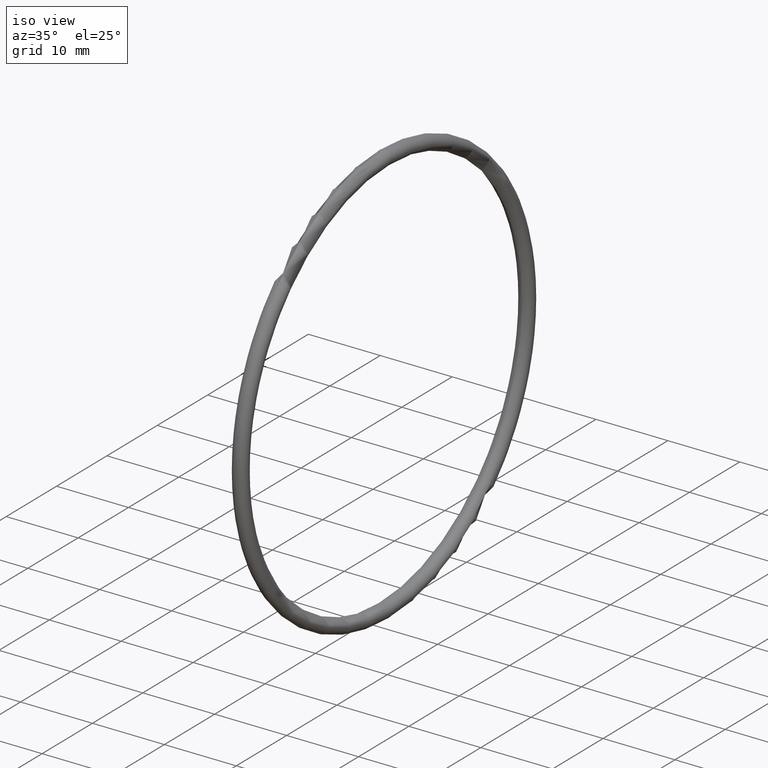
[diagram: clean part render]
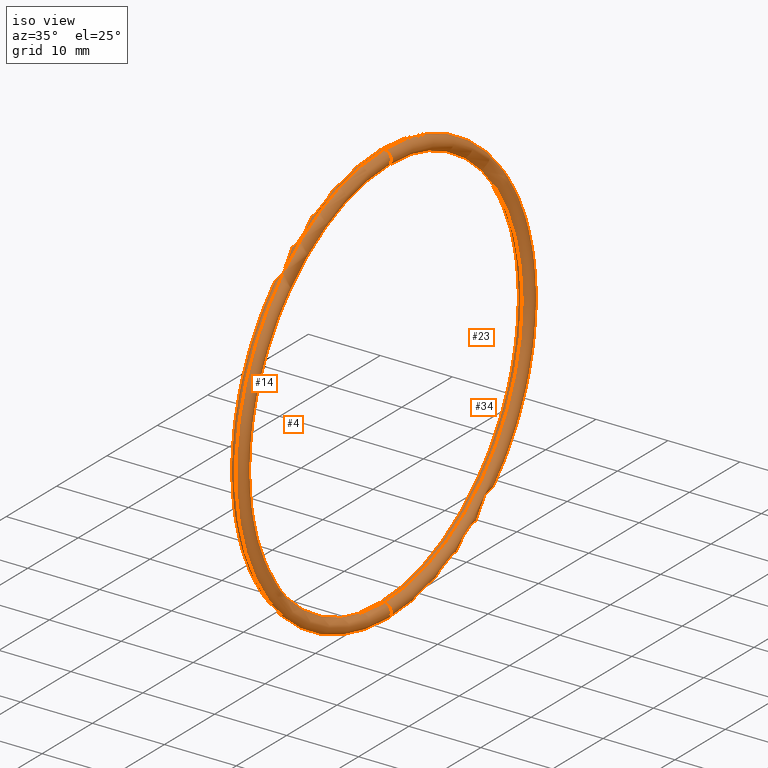
[diagram: same view with one multi-face feature highlighted, each face labeled with its STEP entity id]
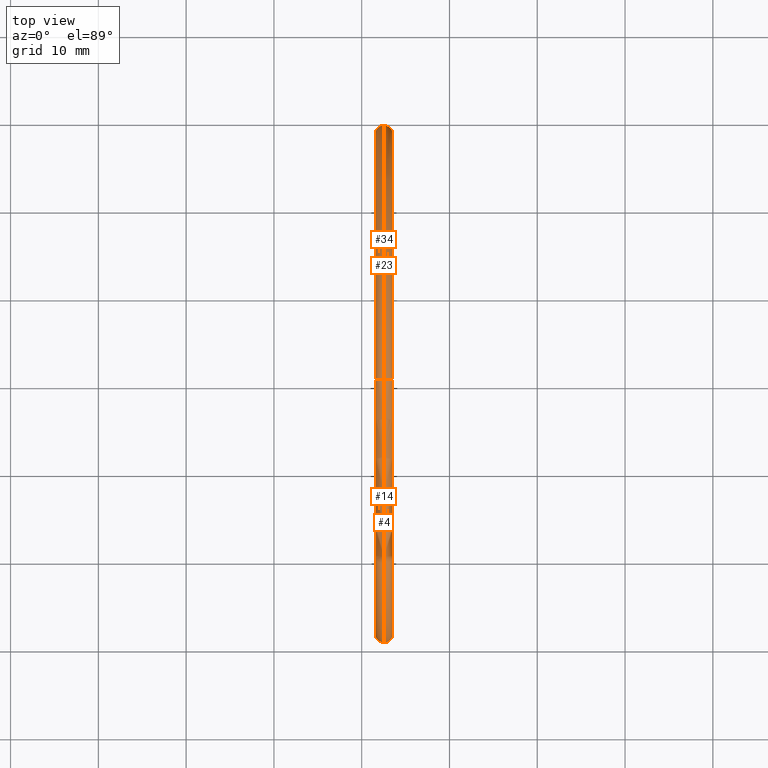
[diagram: same view with one multi-face feature highlighted, each face labeled with its STEP entity id]
A machine part, iso view. The highlighted faces form ONE feature: a constant-radius fillet chain: 4 tangent blend faces with common blend radius 1.016 mm. The faces share edges in the B-rep.
A second angle (top view) of the same feature is appended — it is thin or edge-on in the first view.
Their STEP definitions:
[1] entity #4 (Torus):
#2 = EDGE_CURVE ( 'NONE', #37, #30, #45, .T. ) ;
#3 = ORIENTED_EDGE ( 'NONE', *, *, #2, .F. ) ;
#4 = ADVANCED_FACE ( 'NONE', ( #53 ), #51, .T. ) ;
#7 = EDGE_CURVE ( 'NONE', #24, #33, #79, .T. ) ;
#9 = ORIENTED_EDGE ( 'NONE', *, *, #7, .T. ) ;
#10 = EDGE_LOOP ( 'NONE', ( #17, #3, #21, #9 ) ) ;
#17 = ORIENTED_EDGE ( 'NONE', *, *, #46, .F. ) ;
#21 = ORIENTED_EDGE ( 'NONE', *, *, #27, .T. ) ;
#24 = VERTEX_POINT ( 'NONE', #77 ) ;
#27 = EDGE_CURVE ( 'NONE', #37, #24, #101, .T. ) ;
#30 = VERTEX_POINT ( 'NONE', #110 ) ;
#33 = VERTEX_POINT ( 'NONE', #99 ) ;
#37 = VERTEX_POINT ( 'NONE', #60 ) ;
#39 = DIRECTION ( 'NONE',  ( 0.0000000000000000000, -1.224646799147351000E-016, 1.000000000000000000 ) ) ;
#40 = DIRECTION ( 'NONE',  ( 0.0000000000000000000, 1.000000000000000000, 1.224646799147353200E-016 ) ) ;
#41 = CARTESIAN_POINT ( 'NONE',  ( 0.1000000000000001400, 1.371604415045035500E-016, -1.120000000000000100 ) ) ;
#42 = AXIS2_PLACEMENT_3D ( 'NONE', #41, #40, #39 ) ;
#45 = CIRCLE ( 'NONE', #42, 0.03999999999999998000 ) ;
#46 = EDGE_CURVE ( 'NONE', #30, #33, #88, .T. ) ;
#49 = AXIS2_PLACEMENT_3D ( 'NONE', #52, #54, #50 ) ;
#50 = DIRECTION ( 'NONE',  ( 0.0000000000000000000, 0.0000000000000000000, 1.000000000000000000 ) ) ;
#51 = TOROIDAL_SURFACE ( 'NONE', #49, 1.120000000000000100, 0.03999999999999995200 ) ;
#52 = CARTESIAN_POINT ( 'NONE',  ( 0.1000000000000001400, 0.0000000000000000000, 0.0000000000000000000 ) ) ;
#53 = FACE_OUTER_BOUND ( 'NONE', #10, .T. ) ;
#54 = DIRECTION ( 'NONE',  ( -1.000000000000000000, 0.0000000000000000000, 0.0000000000000000000 ) ) ;
#60 = CARTESIAN_POINT ( 'NONE',  ( 0.1000000000000001400, 1.322618543079141500E-016, -1.080000000000000100 ) ) ;
#61 = DIRECTION ( 'NONE',  ( 0.0000000000000000000, 0.0000000000000000000, -1.000000000000000000 ) ) ;
#64 = DIRECTION ( 'NONE',  ( 0.0000000000000000000, -1.000000000000000000, 0.0000000000000000000 ) ) ;
#77 = CARTESIAN_POINT ( 'NONE',  ( 0.1000000000000001400, 0.0000000000000000000, 1.080000000000000100 ) ) ;
#78 = AXIS2_PLACEMENT_3D ( 'NONE', #83, #64, #61 ) ;
#79 = CIRCLE ( 'NONE', #78, 0.03999999999999998000 ) ;
#80 = AXIS2_PLACEMENT_3D ( 'NONE', #113, #112, #111 ) ;
#83 = CARTESIAN_POINT ( 'NONE',  ( 0.1000000000000001400, 0.0000000000000000000, 1.120000000000000100 ) ) ;
#86 = DIRECTION ( 'NONE',  ( -1.000000000000000000, 0.0000000000000000000, 0.0000000000000000000 ) ) ;
#87 = AXIS2_PLACEMENT_3D ( 'NONE', #106, #86, #96 ) ;
#88 = CIRCLE ( 'NONE', #87, 1.160000000000000100 ) ;
#96 = DIRECTION ( 'NONE',  ( 0.0000000000000000000, 0.0000000000000000000, 1.000000000000000000 ) ) ;
#99 = CARTESIAN_POINT ( 'NONE',  ( 0.1000000000000001400, 0.0000000000000000000, 1.160000000000000100 ) ) ;
#101 = CIRCLE ( 'NONE', #80, 1.080000000000000100 ) ;
#106 = CARTESIAN_POINT ( 'NONE',  ( 0.1000000000000001400, 0.0000000000000000000, 0.0000000000000000000 ) ) ;
#110 = CARTESIAN_POINT ( 'NONE',  ( 0.1000000000000001400, 1.420590287010929800E-016, -1.160000000000000100 ) ) ;
#111 = DIRECTION ( 'NONE',  ( 0.0000000000000000000, 0.0000000000000000000, 1.000000000000000000 ) ) ;
#112 = DIRECTION ( 'NONE',  ( -1.000000000000000000, 0.0000000000000000000, 0.0000000000000000000 ) ) ;
#113 = CARTESIAN_POINT ( 'NONE',  ( 0.1000000000000001400, 0.0000000000000000000, 0.0000000000000000000 ) ) ;
[2] entity #23 (Torus):
#1 = ORIENTED_EDGE ( 'NONE', *, *, #2, .T. ) ;
#2 = EDGE_CURVE ( 'NONE', #37, #30, #45, .T. ) ;
#5 = EDGE_CURVE ( 'NONE', #24, #37, #48, .T. ) ;
#6 = ORIENTED_EDGE ( 'NONE', *, *, #7, .F. ) ;
#7 = EDGE_CURVE ( 'NONE', #24, #33, #79, .T. ) ;
#8 = ORIENTED_EDGE ( 'NONE', *, *, #5, .T. ) ;
#12 = ORIENTED_EDGE ( 'NONE', *, *, #20, .F. ) ;
#18 = EDGE_LOOP ( 'NONE', ( #12, #6, #8, #1 ) ) ;
#20 = EDGE_CURVE ( 'NONE', #33, #30, #108, .T. ) ;
#23 = ADVANCED_FACE ( 'NONE', ( #69 ), #85, .T. ) ;
#24 = VERTEX_POINT ( 'NONE', #77 ) ;
#30 = VERTEX_POINT ( 'NONE', #110 ) ;
#33 = VERTEX_POINT ( 'NONE', #99 ) ;
#37 = VERTEX_POINT ( 'NONE', #60 ) ;
#38 = DIRECTION ( 'NONE',  ( 0.0000000000000000000, 0.0000000000000000000, 1.000000000000000000 ) ) ;
#39 = DIRECTION ( 'NONE',  ( 0.0000000000000000000, -1.224646799147351000E-016, 1.000000000000000000 ) ) ;
#40 = DIRECTION ( 'NONE',  ( 0.0000000000000000000, 1.000000000000000000, 1.224646799147353200E-016 ) ) ;
#41 = CARTESIAN_POINT ( 'NONE',  ( 0.1000000000000001400, 1.371604415045035500E-016, -1.120000000000000100 ) ) ;
#42 = AXIS2_PLACEMENT_3D ( 'NONE', #41, #40, #39 ) ;
#43 = DIRECTION ( 'NONE',  ( -1.000000000000000000, 0.0000000000000000000, 0.0000000000000000000 ) ) ;
#44 = CARTESIAN_POINT ( 'NONE',  ( 0.1000000000000001400, 0.0000000000000000000, 0.0000000000000000000 ) ) ;
#45 = CIRCLE ( 'NONE', #42, 0.03999999999999998000 ) ;
#47 = AXIS2_PLACEMENT_3D ( 'NONE', #44, #43, #38 ) ;
#48 = CIRCLE ( 'NONE', #47, 1.080000000000000100 ) ;
#55 = DIRECTION ( 'NONE',  ( -1.000000000000000000, 0.0000000000000000000, 0.0000000000000000000 ) ) ;
#56 = CARTESIAN_POINT ( 'NONE',  ( 0.1000000000000001400, 0.0000000000000000000, 0.0000000000000000000 ) ) ;
#57 = AXIS2_PLACEMENT_3D ( 'NONE', #56, #55, #107 ) ;
#60 = CARTESIAN_POINT ( 'NONE',  ( 0.1000000000000001400, 1.322618543079141500E-016, -1.080000000000000100 ) ) ;
#61 = DIRECTION ( 'NONE',  ( 0.0000000000000000000, 0.0000000000000000000, -1.000000000000000000 ) ) ;
#64 = DIRECTION ( 'NONE',  ( 0.0000000000000000000, -1.000000000000000000, 0.0000000000000000000 ) ) ;
#69 = FACE_OUTER_BOUND ( 'NONE', #18, .T. ) ;
#77 = CARTESIAN_POINT ( 'NONE',  ( 0.1000000000000001400, 0.0000000000000000000, 1.080000000000000100 ) ) ;
#78 = AXIS2_PLACEMENT_3D ( 'NONE', #83, #64, #61 ) ;
#79 = CIRCLE ( 'NONE', #78, 0.03999999999999998000 ) ;
#82 = AXIS2_PLACEMENT_3D ( 'NONE', #94, #100, #93 ) ;
#83 = CARTESIAN_POINT ( 'NONE',  ( 0.1000000000000001400, 0.0000000000000000000, 1.120000000000000100 ) ) ;
#85 = TOROIDAL_SURFACE ( 'NONE', #57, 1.120000000000000100, 0.03999999999999995200 ) ;
#93 = DIRECTION ( 'NONE',  ( 0.0000000000000000000, 0.0000000000000000000, 1.000000000000000000 ) ) ;
#94 = CARTESIAN_POINT ( 'NONE',  ( 0.1000000000000001400, 0.0000000000000000000, 0.0000000000000000000 ) ) ;
#99 = CARTESIAN_POINT ( 'NONE',  ( 0.1000000000000001400, 0.0000000000000000000, 1.160000000000000100 ) ) ;
#100 = DIRECTION ( 'NONE',  ( -1.000000000000000000, 0.0000000000000000000, 0.0000000000000000000 ) ) ;
#107 = DIRECTION ( 'NONE',  ( 0.0000000000000000000, 0.0000000000000000000, 1.000000000000000000 ) ) ;
#108 = CIRCLE ( 'NONE', #82, 1.160000000000000100 ) ;
#110 = CARTESIAN_POINT ( 'NONE',  ( 0.1000000000000001400, 1.420590287010929800E-016, -1.160000000000000100 ) ) ;
[3] entity #34 (Torus):
#5 = EDGE_CURVE ( 'NONE', #24, #37, #48, .T. ) ;
#13 = ORIENTED_EDGE ( 'NONE', *, *, #5, .F. ) ;
#19 = ORIENTED_EDGE ( 'NONE', *, *, #20, .T. ) ;
#20 = EDGE_CURVE ( 'NONE', #33, #30, #108, .T. ) ;
#24 = VERTEX_POINT ( 'NONE', #77 ) ;
#25 = EDGE_LOOP ( 'NONE', ( #29, #19, #35, #13 ) ) ;
#29 = ORIENTED_EDGE ( 'NONE', *, *, #32, .F. ) ;
#30 = VERTEX_POINT ( 'NONE', #110 ) ;
#32 = EDGE_CURVE ( 'NONE', #33, #24, #98, .T. ) ;
#33 = VERTEX_POINT ( 'NONE', #99 ) ;
#34 = ADVANCED_FACE ( 'NONE', ( #74 ), #73, .T. ) ;
#35 = ORIENTED_EDGE ( 'NONE', *, *, #36, .T. ) ;
#36 = EDGE_CURVE ( 'NONE', #30, #37, #59, .T. ) ;
#37 = VERTEX_POINT ( 'NONE', #60 ) ;
#38 = DIRECTION ( 'NONE',  ( 0.0000000000000000000, 0.0000000000000000000, 1.000000000000000000 ) ) ;
#43 = DIRECTION ( 'NONE',  ( -1.000000000000000000, 0.0000000000000000000, 0.0000000000000000000 ) ) ;
#44 = CARTESIAN_POINT ( 'NONE',  ( 0.1000000000000001400, 0.0000000000000000000, 0.0000000000000000000 ) ) ;
#47 = AXIS2_PLACEMENT_3D ( 'NONE', #44, #43, #38 ) ;
#48 = CIRCLE ( 'NONE', #47, 1.080000000000000100 ) ;
#59 = CIRCLE ( 'NONE', #119, 0.03999999999999998000 ) ;
#60 = CARTESIAN_POINT ( 'NONE',  ( 0.1000000000000001400, 1.322618543079141500E-016, -1.080000000000000100 ) ) ;
#65 = DIRECTION ( 'NONE',  ( 0.0000000000000000000, 0.0000000000000000000, 1.000000000000000000 ) ) ;
#66 = DIRECTION ( 'NONE',  ( -1.000000000000000000, 0.0000000000000000000, 0.0000000000000000000 ) ) ;
#67 = CARTESIAN_POINT ( 'NONE',  ( 0.1000000000000001400, 0.0000000000000000000, 0.0000000000000000000 ) ) ;
#68 = AXIS2_PLACEMENT_3D ( 'NONE', #67, #66, #65 ) ;
#73 = TOROIDAL_SURFACE ( 'NONE', #68, 1.120000000000000100, 0.03999999999999995200 ) ;
#74 = FACE_OUTER_BOUND ( 'NONE', #25, .T. ) ;
#75 = DIRECTION ( 'NONE',  ( 0.0000000000000000000, 0.0000000000000000000, -1.000000000000000000 ) ) ;
#76 = DIRECTION ( 'NONE',  ( 0.0000000000000000000, -1.000000000000000000, 0.0000000000000000000 ) ) ;
#77 = CARTESIAN_POINT ( 'NONE',  ( 0.1000000000000001400, 0.0000000000000000000, 1.080000000000000100 ) ) ;
#81 = CARTESIAN_POINT ( 'NONE',  ( 0.1000000000000001400, 0.0000000000000000000, 1.120000000000000100 ) ) ;
#82 = AXIS2_PLACEMENT_3D ( 'NONE', #94, #100, #93 ) ;
#93 = DIRECTION ( 'NONE',  ( 0.0000000000000000000, 0.0000000000000000000, 1.000000000000000000 ) ) ;
#94 = CARTESIAN_POINT ( 'NONE',  ( 0.1000000000000001400, 0.0000000000000000000, 0.0000000000000000000 ) ) ;
#97 = AXIS2_PLACEMENT_3D ( 'NONE', #81, #76, #75 ) ;
#98 = CIRCLE ( 'NONE', #97, 0.03999999999999998000 ) ;
#99 = CARTESIAN_POINT ( 'NONE',  ( 0.1000000000000001400, 0.0000000000000000000, 1.160000000000000100 ) ) ;
#100 = DIRECTION ( 'NONE',  ( -1.000000000000000000, 0.0000000000000000000, 0.0000000000000000000 ) ) ;
#108 = CIRCLE ( 'NONE', #82, 1.160000000000000100 ) ;
#110 = CARTESIAN_POINT ( 'NONE',  ( 0.1000000000000001400, 1.420590287010929800E-016, -1.160000000000000100 ) ) ;
#116 = DIRECTION ( 'NONE',  ( 0.0000000000000000000, -1.224646799147351000E-016, 1.000000000000000000 ) ) ;
#117 = DIRECTION ( 'NONE',  ( 0.0000000000000000000, 1.000000000000000000, 1.224646799147353200E-016 ) ) ;
#118 = CARTESIAN_POINT ( 'NONE',  ( 0.1000000000000001400, 1.371604415045035500E-016, -1.120000000000000100 ) ) ;
#119 = AXIS2_PLACEMENT_3D ( 'NONE', #118, #117, #116 ) ;
[4] entity #14 (Torus):
#14 = ADVANCED_FACE ( 'NONE', ( #92 ), #109, .T. ) ;
#15 = EDGE_LOOP ( 'NONE', ( #16, #22, #31, #26 ) ) ;
#16 = ORIENTED_EDGE ( 'NONE', *, *, #36, .F. ) ;
#22 = ORIENTED_EDGE ( 'NONE', *, *, #46, .T. ) ;
#24 = VERTEX_POINT ( 'NONE', #77 ) ;
#26 = ORIENTED_EDGE ( 'NONE', *, *, #27, .F. ) ;
#27 = EDGE_CURVE ( 'NONE', #37, #24, #101, .T. ) ;
#30 = VERTEX_POINT ( 'NONE', #110 ) ;
#31 = ORIENTED_EDGE ( 'NONE', *, *, #32, .T. ) ;
#32 = EDGE_CURVE ( 'NONE', #33, #24, #98, .T. ) ;
#33 = VERTEX_POINT ( 'NONE', #99 ) ;
#36 = EDGE_CURVE ( 'NONE', #30, #37, #59, .T. ) ;
#37 = VERTEX_POINT ( 'NONE', #60 ) ;
#46 = EDGE_CURVE ( 'NONE', #30, #33, #88, .T. ) ;
#58 = CARTESIAN_POINT ( 'NONE',  ( 0.1000000000000001400, 0.0000000000000000000, 0.0000000000000000000 ) ) ;
#59 = CIRCLE ( 'NONE', #119, 0.03999999999999998000 ) ;
#60 = CARTESIAN_POINT ( 'NONE',  ( 0.1000000000000001400, 1.322618543079141500E-016, -1.080000000000000100 ) ) ;
#70 = DIRECTION ( 'NONE',  ( 0.0000000000000000000, 0.0000000000000000000, 1.000000000000000000 ) ) ;
#75 = DIRECTION ( 'NONE',  ( 0.0000000000000000000, 0.0000000000000000000, -1.000000000000000000 ) ) ;
#76 = DIRECTION ( 'NONE',  ( 0.0000000000000000000, -1.000000000000000000, 0.0000000000000000000 ) ) ;
#77 = CARTESIAN_POINT ( 'NONE',  ( 0.1000000000000001400, 0.0000000000000000000, 1.080000000000000100 ) ) ;
#80 = AXIS2_PLACEMENT_3D ( 'NONE', #113, #112, #111 ) ;
#81 = CARTESIAN_POINT ( 'NONE',  ( 0.1000000000000001400, 0.0000000000000000000, 1.120000000000000100 ) ) ;
#84 = DIRECTION ( 'NONE',  ( -1.000000000000000000, 0.0000000000000000000, 0.0000000000000000000 ) ) ;
#86 = DIRECTION ( 'NONE',  ( -1.000000000000000000, 0.0000000000000000000, 0.0000000000000000000 ) ) ;
#87 = AXIS2_PLACEMENT_3D ( 'NONE', #106, #86, #96 ) ;
#88 = CIRCLE ( 'NONE', #87, 1.160000000000000100 ) ;
#92 = FACE_OUTER_BOUND ( 'NONE', #15, .T. ) ;
#96 = DIRECTION ( 'NONE',  ( 0.0000000000000000000, 0.0000000000000000000, 1.000000000000000000 ) ) ;
#97 = AXIS2_PLACEMENT_3D ( 'NONE', #81, #76, #75 ) ;
#98 = CIRCLE ( 'NONE', #97, 0.03999999999999998000 ) ;
#99 = CARTESIAN_POINT ( 'NONE',  ( 0.1000000000000001400, 0.0000000000000000000, 1.160000000000000100 ) ) ;
#101 = CIRCLE ( 'NONE', #80, 1.080000000000000100 ) ;
#105 = AXIS2_PLACEMENT_3D ( 'NONE', #58, #84, #70 ) ;
#106 = CARTESIAN_POINT ( 'NONE',  ( 0.1000000000000001400, 0.0000000000000000000, 0.0000000000000000000 ) ) ;
#109 = TOROIDAL_SURFACE ( 'NONE', #105, 1.120000000000000100, 0.03999999999999995200 ) ;
#110 = CARTESIAN_POINT ( 'NONE',  ( 0.1000000000000001400, 1.420590287010929800E-016, -1.160000000000000100 ) ) ;
#111 = DIRECTION ( 'NONE',  ( 0.0000000000000000000, 0.0000000000000000000, 1.000000000000000000 ) ) ;
#112 = DIRECTION ( 'NONE',  ( -1.000000000000000000, 0.0000000000000000000, 0.0000000000000000000 ) ) ;
#113 = CARTESIAN_POINT ( 'NONE',  ( 0.1000000000000001400, 0.0000000000000000000, 0.0000000000000000000 ) ) ;
#116 = DIRECTION ( 'NONE',  ( 0.0000000000000000000, -1.224646799147351000E-016, 1.000000000000000000 ) ) ;
#117 = DIRECTION ( 'NONE',  ( 0.0000000000000000000, 1.000000000000000000, 1.224646799147353200E-016 ) ) ;
#118 = CARTESIAN_POINT ( 'NONE',  ( 0.1000000000000001400, 1.371604415045035500E-016, -1.120000000000000100 ) ) ;
#119 = AXIS2_PLACEMENT_3D ( 'NONE', #118, #117, #116 ) ;